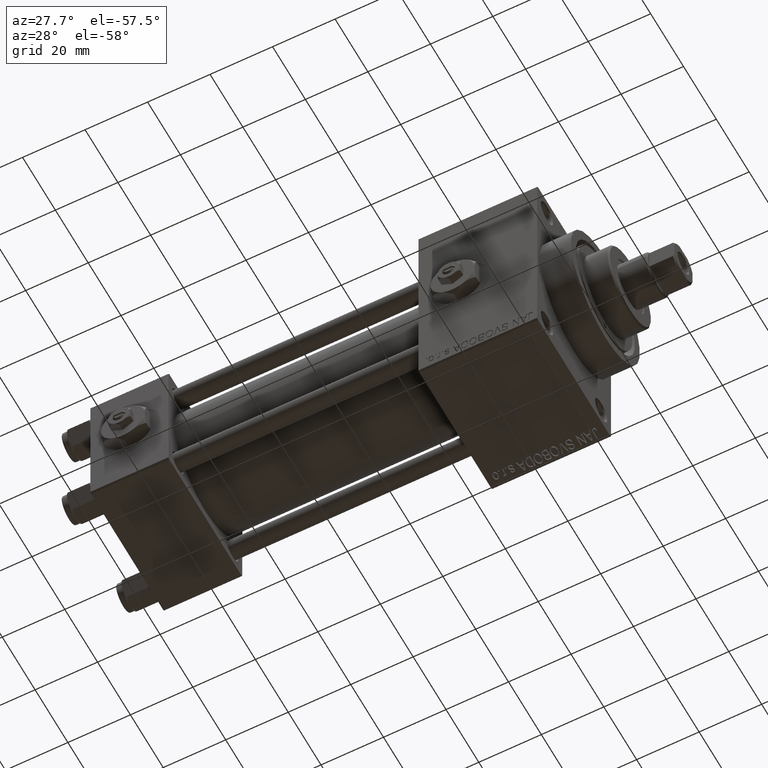
[diagram: clean part render]
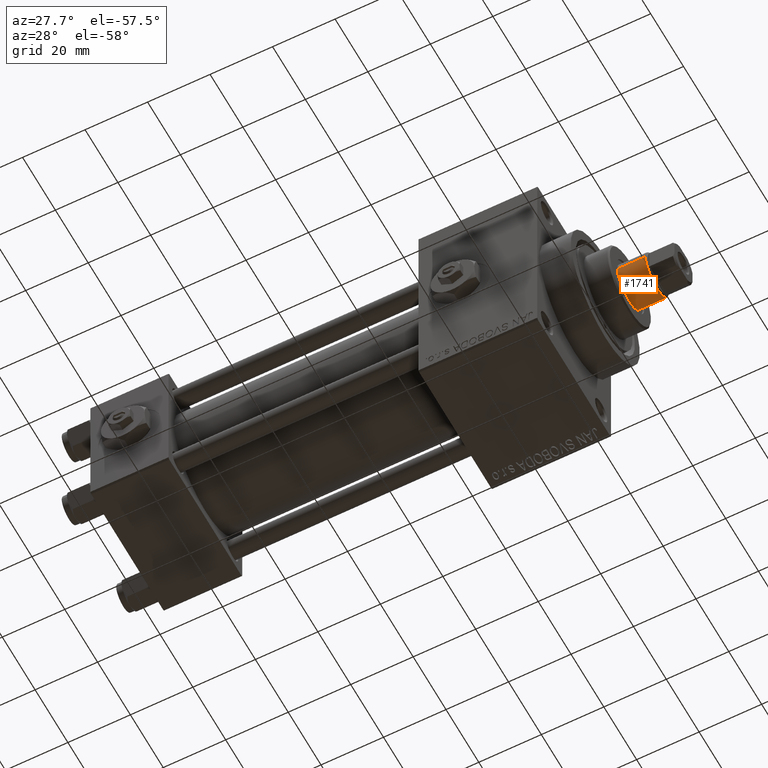
[diagram: same view with one face highlighted and labeled with its STEP entity id]
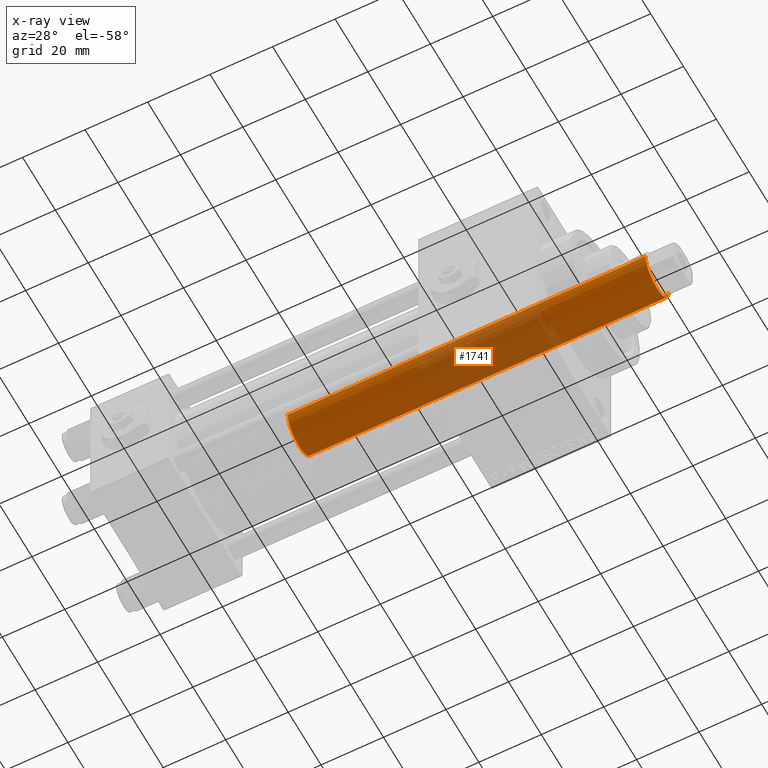
[diagram: x-ray of the same camera — body ghosted, the highlighted face saturated]
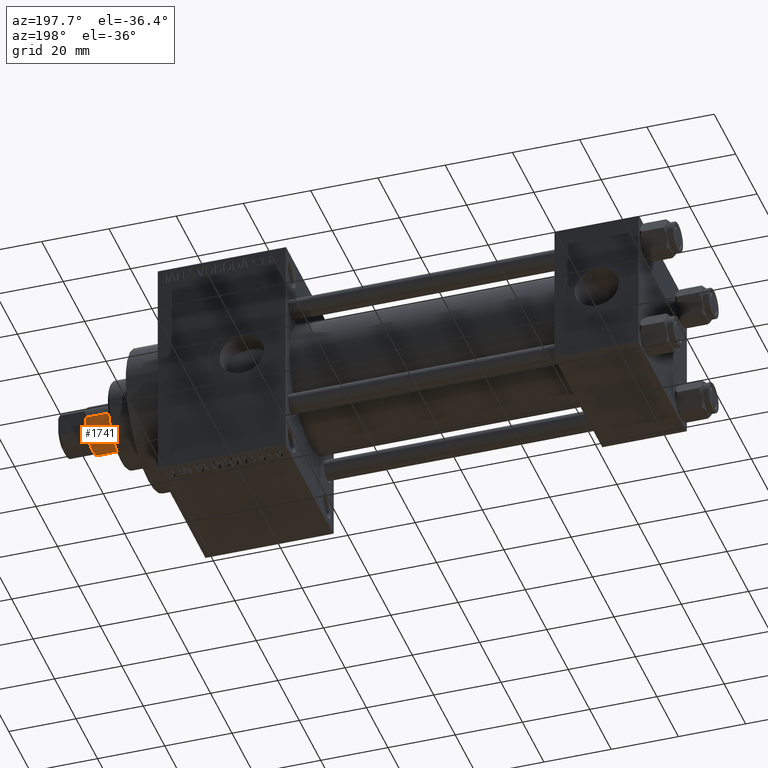
[diagram: same view with one face highlighted and labeled with its STEP entity id]
A machine part, auxiliary view. The second image highlights one B-rep face of the part: STEP entity #1741.
The next image is the same camera in x-ray: the body ghosted, the highlighted face saturated — about 37% of this face is hidden behind the body in this view.
A second angle (auxiliary view) of the same face is appended — the face is thin or edge-on in the first view.
In plain terms, the highlighted cylindrical surface (edge-blend (fillet) strip) has radius 7 mm, axis along (-1, 0, 0).
Its self-contained STEP definition (entity closure, byte-faithful):
#220 = ORIENTED_EDGE ( 'NONE', *, *, #43660, .T. ) ;
#264 = EDGE_CURVE ( 'NONE', #38077, #12867, #20894, .T. ) ;
#1741 = ADVANCED_FACE ( 'NONE', ( #10131 ), #2148, .T. ) ;
#2148 = CYLINDRICAL_SURFACE ( 'NONE', #32085, 7.000000000000000000 ) ;
#2858 = DIRECTION ( 'NONE',  ( -0.000000000000000000, -0.000000000000000000, -1.000000000000000000 ) ) ;
#8227 = EDGE_CURVE ( 'NONE', #38077, #34584, #26932, .T. ) ;
#10131 = FACE_OUTER_BOUND ( 'NONE', #13398, .T. ) ;
#12867 = VERTEX_POINT ( 'NONE', #15728 ) ;
#13398 = EDGE_LOOP ( 'NONE', ( #29096, #220, #28939, #41748 ) ) ;
#13597 = DIRECTION ( 'NONE',  ( -1.000000000000000000, 0.000000000000000000, 0.000000000000000000 ) ) ;
#13737 = AXIS2_PLACEMENT_3D ( 'NONE', #25240, #48126, #24992 ) ;
#14528 = AXIS2_PLACEMENT_3D ( 'NONE', #42458, #19785, #37730 ) ;
#15728 = CARTESIAN_POINT ( 'NONE',  ( 7.000000000000000000, 8.572527594031473190E-16, 144.4999999999999716 ) ) ;
#15822 = EDGE_CURVE ( 'NONE', #21205, #34584, #35222, .T. ) ;
#17354 = CARTESIAN_POINT ( 'NONE',  ( 0.000000000000000000, 0.000000000000000000, 145.0000000000000284 ) ) ;
#18453 = DIRECTION ( 'NONE',  ( -0.000000000000000000, -0.000000000000000000, -1.000000000000000000 ) ) ;
#19785 = DIRECTION ( 'NONE',  ( 0.000000000000000000, 0.000000000000000000, -1.000000000000000000 ) ) ;
#20894 = CIRCLE ( 'NONE', #14528, 7.000000000000000000 ) ;
#21205 = VERTEX_POINT ( 'NONE', #41796 ) ;
#24992 = DIRECTION ( 'NONE',  ( 1.000000000000000000, 0.000000000000000000, 0.000000000000000000 ) ) ;
#25240 = CARTESIAN_POINT ( 'NONE',  ( 0.000000000000000000, 0.000000000000000000, 30.00000000000000000 ) ) ;
#25791 = CARTESIAN_POINT ( 'NONE',  ( 7.000000000000000000, 8.572527594031473190E-16, 145.0000000000000284 ) ) ;
#26932 = LINE ( 'NONE', #45609, #30985 ) ;
#28939 = ORIENTED_EDGE ( 'NONE', *, *, #15822, .T. ) ;
#29096 = ORIENTED_EDGE ( 'NONE', *, *, #264, .T. ) ;
#30005 = CARTESIAN_POINT ( 'NONE',  ( -7.000000000000000000, 0.000000000000000000, 144.4999999999999716 ) ) ;
#30985 = VECTOR ( 'NONE', #18453, 1000.000000000000000 ) ;
#32085 = AXIS2_PLACEMENT_3D ( 'NONE', #17354, #32541, #13597 ) ;
#32541 = DIRECTION ( 'NONE',  ( -0.000000000000000000, -0.000000000000000000, -1.000000000000000000 ) ) ;
#34584 = VERTEX_POINT ( 'NONE', #38087 ) ;
#35222 = CIRCLE ( 'NONE', #13737, 7.000000000000000000 ) ;
#37007 = LINE ( 'NONE', #25791, #44555 ) ;
#37730 = DIRECTION ( 'NONE',  ( 1.000000000000000000, 0.000000000000000000, 0.000000000000000000 ) ) ;
#38077 = VERTEX_POINT ( 'NONE', #30005 ) ;
#38087 = CARTESIAN_POINT ( 'NONE',  ( -7.000000000000000000, 0.000000000000000000, 30.00000000000000000 ) ) ;
#41748 = ORIENTED_EDGE ( 'NONE', *, *, #8227, .F. ) ;
#41796 = CARTESIAN_POINT ( 'NONE',  ( 7.000000000000000000, 8.572527594031473190E-16, 30.00000000000000000 ) ) ;
#42458 = CARTESIAN_POINT ( 'NONE',  ( 0.000000000000000000, 0.000000000000000000, 144.4999999999999716 ) ) ;
#43660 = EDGE_CURVE ( 'NONE', #12867, #21205, #37007, .T. ) ;
#44555 = VECTOR ( 'NONE', #2858, 1000.000000000000000 ) ;
#45609 = CARTESIAN_POINT ( 'NONE',  ( -7.000000000000000000, 0.000000000000000000, 145.0000000000000284 ) ) ;
#48126 = DIRECTION ( 'NONE',  ( 0.000000000000000000, 0.000000000000000000, 1.000000000000000000 ) ) ;